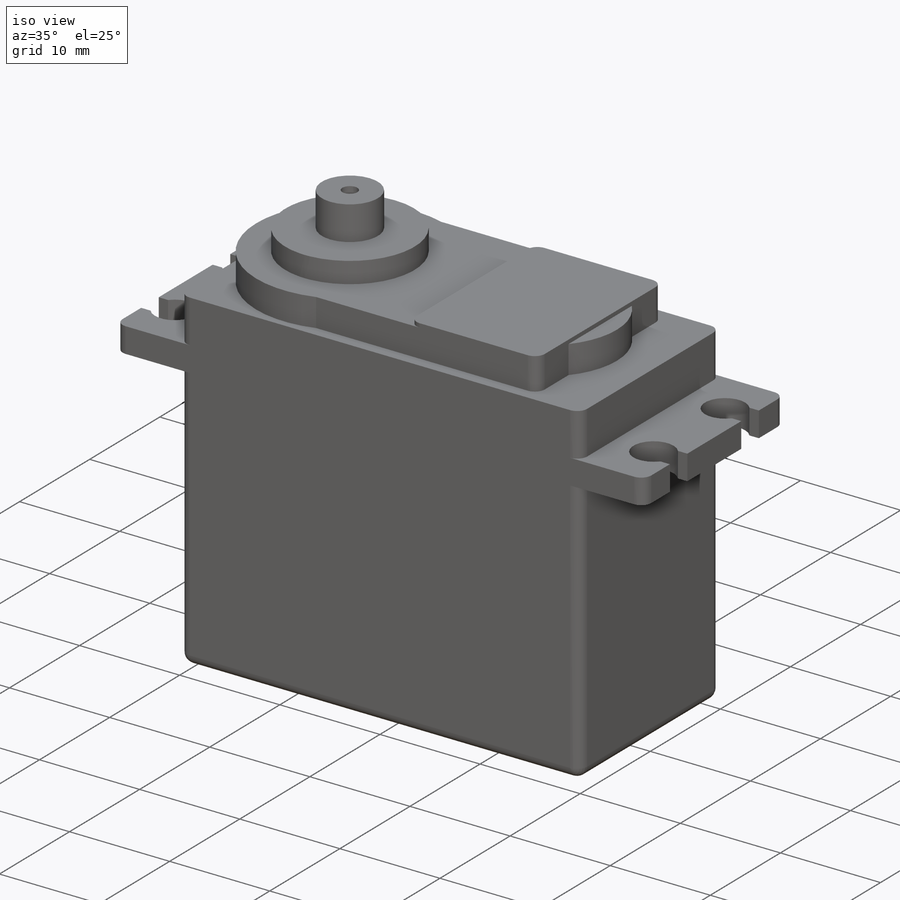
[diagram: iso view]
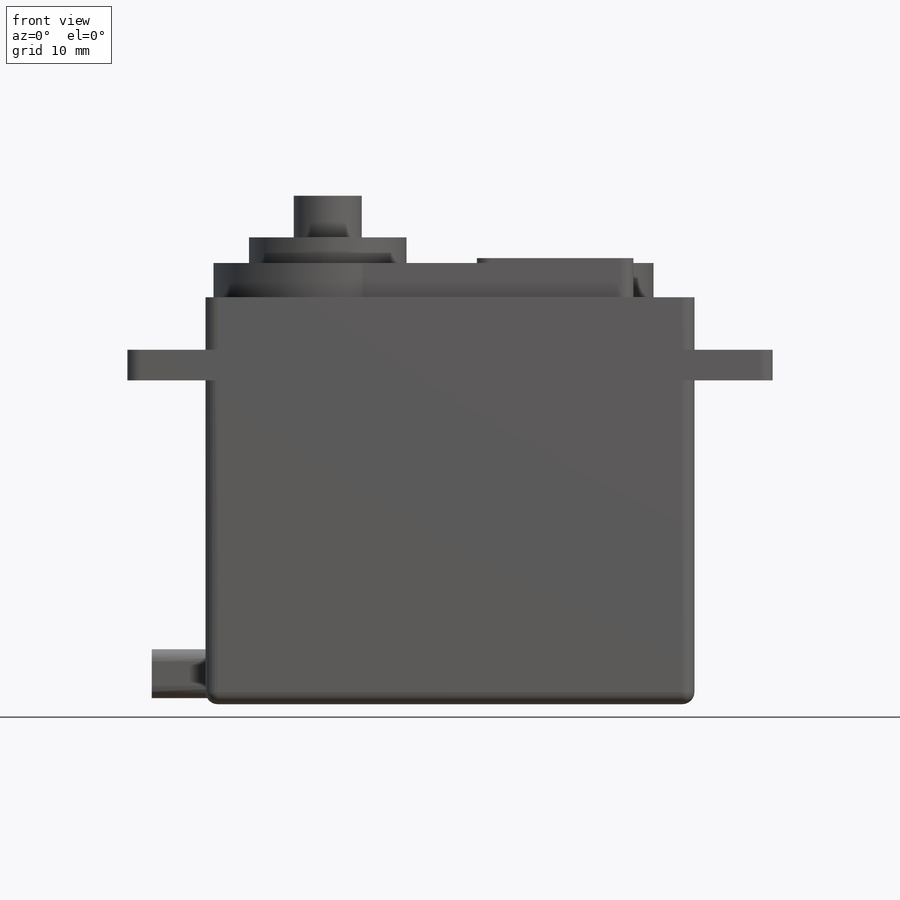
[diagram: front view]
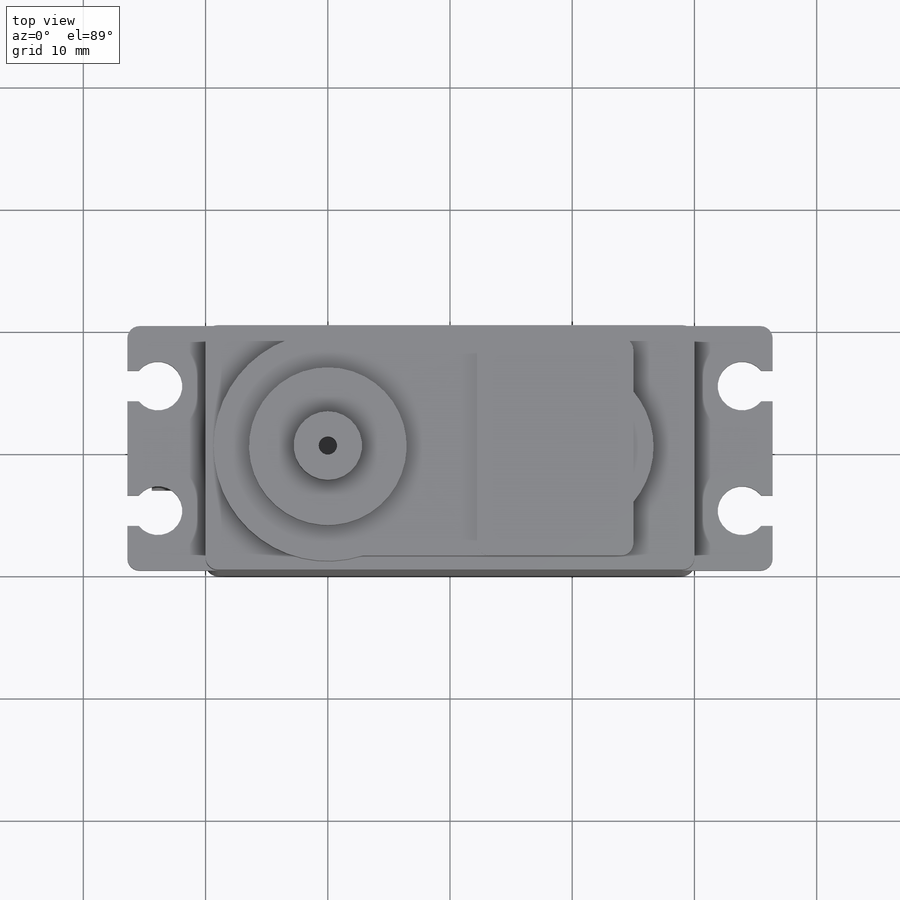
[diagram: top view]
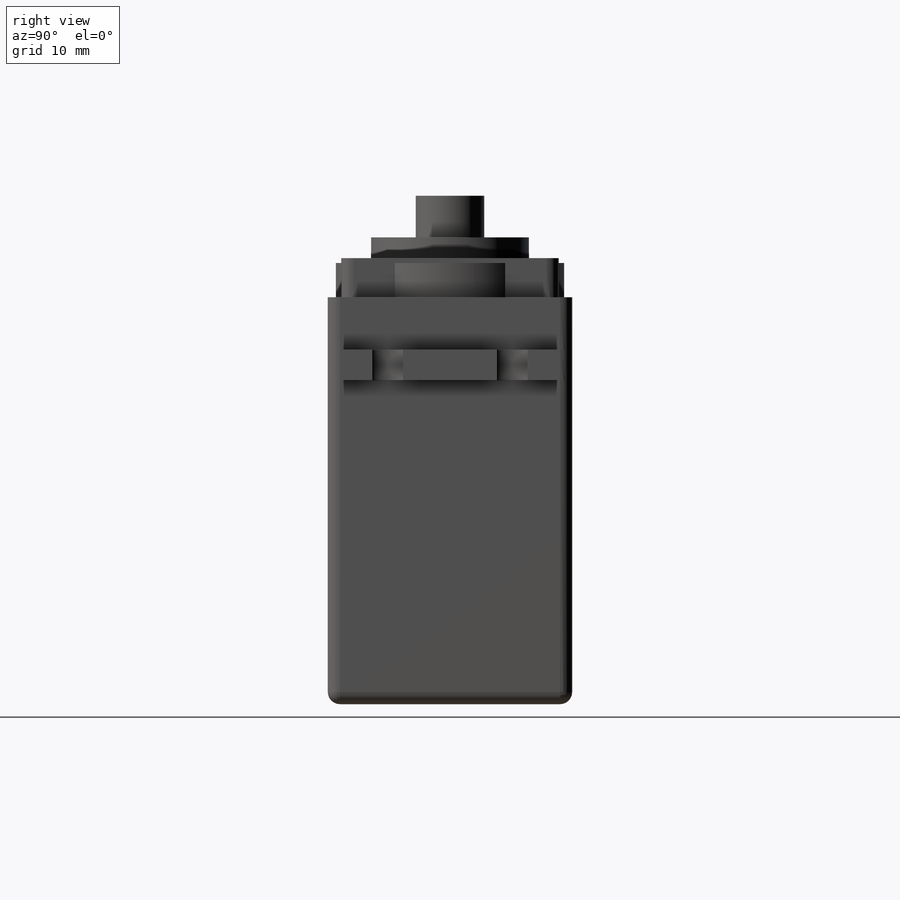
[diagram: right view]
SOLIDWORKS PART (.sldprt)
format: sldprt  version: not decoded by parser v0  size: 460,288 bytes
history: native  units: mm
features: sketch x8, extrude x7, plane x3, material x1, fillet x1, cut_extrude x1 (+14 scaffold rows collapsed)
feature tree (35):
  scaffold x14  (default folders/planes/origin — collapsed)
  material  "ABS PC"
  plane  "Спереди"
  plane  "Сверху"
  plane  "Справа"
  sketch  "Эскиз1"  dims[D3=1.0mm D1=40.0mm D2=20.0mm]
  extrude  "Вытянуть1"  Depth=33.3mm
  sketch  "Эскиз2"  dims[c1.D2=1.0mm c1.D1=52.8mm c2.D2=9.6mm]
  extrude  "Вытянуть2"  Depth=2.5mm
  sketch  "Эскиз3"  dims[c1.D1=18.7mm c1.D3=18.7mm c1.D4=7.0mm c2.D1=9.35mm c2.D3=9.35mm c2.D7=1.0mm c3.D1=5.3mm c3.D2=17.8mm c3.D3=10.0mm c3.D5=36.0mm c3.D6=5.0mm c4.D3=10.0mm]
  extrude  "Вытянуть3"  Depth=36.1mm
  sketch  "Эскиз5"  dims[D2=1.0mm D1=12.8mm]
  extrude  "Вытянуть4"  Depth=0.4mm
  sketch  "Эскиз6"  dims[D1=12.9mm]
  extrude  "Вытянуть5"  Depth=2.1mm
  sketch  "Эскиз7"  dims[D1=5.6mm D2=1.5mm]
  extrude  "Вытянуть6"  Depth=3.4mm
  fillet  "Скругление1"  Radius=1mm
  sketch  "Эскиз8"  dims[c1.D1=~3.160592mm c1.D2=~3.160592mm c1.D3=4.0mm c2.D1=47.8mm c2.D2=10.2mm c2.D4=2.5mm]
  cut_extrude  "Вырез-Вытянуть1"  [1 undecoded]
  sketch  "Эскиз10"  dims[D3=1.0mm D1=6.0mm D2=4.0mm D4=0.5mm]
  extrude  "Вытянуть7"  Depth=4.4mm
decode coverage: 16 of 17 modeling features carry decoded parameters
note: ~ marks probable driven/reference dimensions
note: 1 parameter value undecoded
note: suppression state not decoded; provenance and decode notes live in map.json
